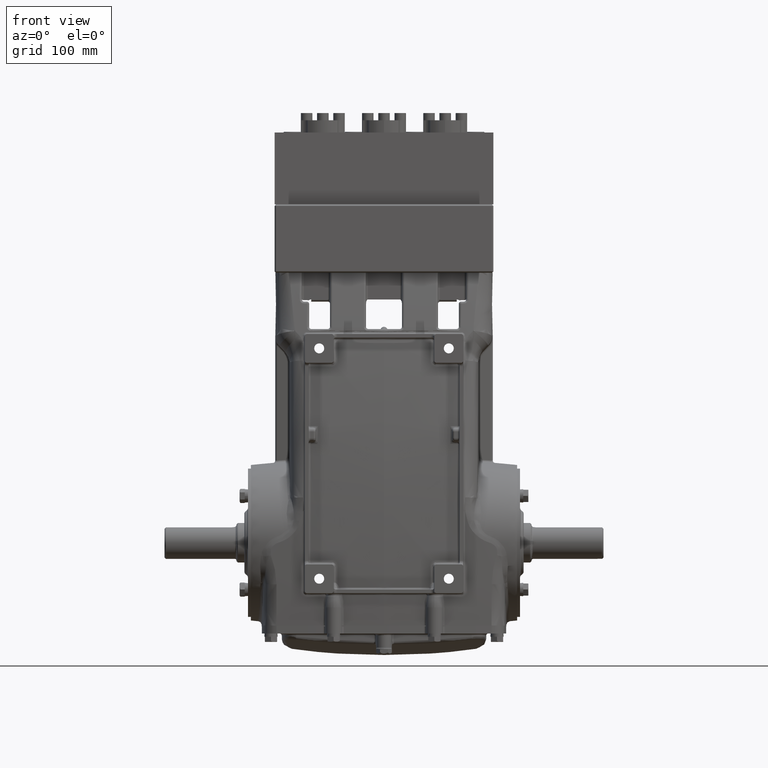
[diagram: clean part render]
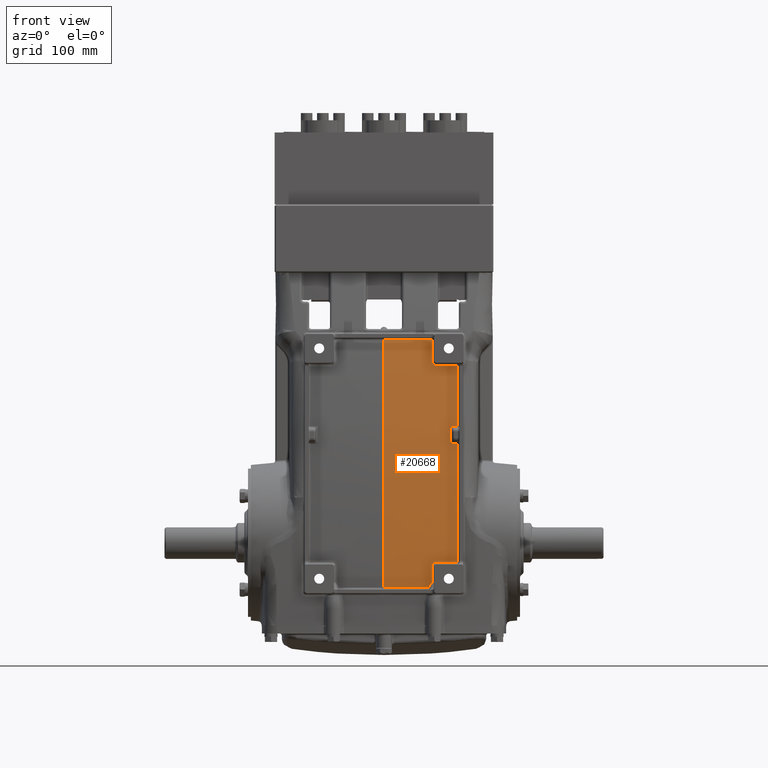
[diagram: same view with one face highlighted and labeled with its STEP entity id]
A machine part, front view. The second image highlights one B-rep face of the part: STEP entity #20668.
In plain terms, the highlighted face is a freeform B-spline surface patch.
Its self-contained STEP definition (entity closure, byte-faithful):
#419 = CARTESIAN_POINT ( 'NONE',  ( 5.413753015067796603, -4.392851647018765959, -4.721680813677779476 ) ) ;
#491 = CARTESIAN_POINT ( 'NONE',  ( 2.586632401729381137, -4.621654160764756547, -2.220136445856032648 ) ) ;
#710 = B_SPLINE_CURVE_WITH_KNOTS ( 'NONE', 3,
 ( #54352, #73187, #5166, #72777, #4768, #41236, #48588, #73586 ),
 .UNSPECIFIED., .F., .F.,
 ( 4, 2, 2, 4 ),
 ( 0.1100862934247376357, 0.1512149560370461554, 0.1923436186493546751, 0.2746009438739717146 ),
 .UNSPECIFIED. ) ;
#824 = CARTESIAN_POINT ( 'NONE',  ( 3.677771778863302199, -4.509885198506749404, -4.592266307971359041 ) ) ;
#1196 = CARTESIAN_POINT ( 'NONE',  ( 8.307133097801747765E-16, -4.665834705919339243, -2.439145830971373829 ) ) ;
#1237 = CARTESIAN_POINT ( 'NONE',  ( 8.100683595711938523, -4.413265680477349129, 1.943166230203502876 ) ) ;
#1636 = CARTESIAN_POINT ( 'NONE',  ( 8.030208900442749709, -2.576162122246953956, 14.76377952755909284 ) ) ;
#2037 = CARTESIAN_POINT ( 'NONE',  ( 6.244892509886193821, -4.326280182861818702, -4.656973560824554603 ) ) ;
#2575 = CARTESIAN_POINT ( 'NONE',  ( 3.616044454389348850, -4.301933441501103239, 5.403433961941422226 ) ) ;
#2621 = VERTEX_POINT ( 'NONE', #30761 ) ;
#2846 = CARTESIAN_POINT ( 'NONE',  ( 1.924953776098369485, -4.578667073187570047, -4.592266307971317296 ) ) ;
#2963 = ORIENTED_EDGE ( 'NONE', *, *, #27175, .F. ) ;
#3202 = VERTEX_POINT ( 'NONE', #77334 ) ;
#3250 = CARTESIAN_POINT ( 'NONE',  ( 1.271245932491347874, -4.589915476206400946, -4.656973560824534175 ) ) ;
#3650 = CARTESIAN_POINT ( 'NONE',  ( 0.2619320396434957066, -4.603595011519804103, -4.592266307971327954 ) ) ;
#3761 = CARTESIAN_POINT ( 'NONE',  ( 2.633451682630481017, -3.827767035953573593, 9.943866171489569084 ) ) ;
#4053 = CARTESIAN_POINT ( 'NONE',  ( 3.677514481449129846, -4.507195010719162731, -4.656973560824575031 ) ) ;
#4175 = CARTESIAN_POINT ( 'NONE',  ( 2.713445904319685908, -4.622922570484267801, -1.121384847322080436 ) ) ;
#4768 = CARTESIAN_POINT ( 'NONE',  ( 4.009076246432647928, -4.464142590308505021, 2.711700979093898400 ) ) ;
#4794 = CARTESIAN_POINT ( 'NONE',  ( 2.771421394848513575, -3.853013347860668514, 9.729127848689499203 ) ) ;
#4976 = CARTESIAN_POINT ( 'NONE',  ( 2.634936377767680415, -4.625970219346760004, -1.268135836703963459 ) ) ;
#5166 = CARTESIAN_POINT ( 'NONE',  ( 4.009084545783799136, -4.366297798552408516, 4.327476322675768650 ) ) ;
#5326 = VERTEX_POINT ( 'NONE', #66508 ) ;
#6223 = EDGE_CURVE ( 'NONE', #34870, #70426, #78770, .T. ) ;
#6422 = EDGE_CURVE ( 'NONE', #7752, #52148, #24028, .T. ) ;
#6429 = CARTESIAN_POINT ( 'NONE',  ( 8.307133097801747765E-16, -4.665834705919339243, -2.439145830971373829 ) ) ;
#6952 = CARTESIAN_POINT ( 'NONE',  ( 4.659148281296010552, -4.196403403979729774, 8.422581710757222950 ) ) ;
#7360 = CARTESIAN_POINT ( 'NONE',  ( 9.813594160922399112, -3.921200885824479787, -4.592266307971329731 ) ) ;
#7644 = CARTESIAN_POINT ( 'NONE',  ( 6.222606604880411818E-16, -3.704600613205711657, 11.08387675029587349 ) ) ;
#7752 = VERTEX_POINT ( 'NONE', #66856 ) ;
#7763 = CARTESIAN_POINT ( 'NONE',  ( 6.244516168916932841, -4.331721145643910198, -4.527559055118123510 ) ) ;
#8167 = CARTESIAN_POINT ( 'NONE',  ( 7.482576476895471451, -3.952699809518920748, 8.422581710757233608 ) ) ;
#8574 = CARTESIAN_POINT ( 'NONE',  ( 6.833064749036533492, -4.271718344480565754, -4.656973560824541281 ) ) ;
#8927 = EDGE_LOOP ( 'NONE', ( #38938, #55308, #15467, #11415, #53250, #24632, #58580, #2963, #80768, #32689, #67792, #46325, #77706, #24190, #57493 ) ) ;
#9379 = CARTESIAN_POINT ( 'NONE',  ( 2.784098044332857125, -4.295940717290989141, 8.422581710757331308 ) ) ;
#9961 = VERTEX_POINT ( 'NONE', #53598 ) ;
#10587 = CARTESIAN_POINT ( 'NONE',  ( 0.7397320881632531986, -4.600979020265389074, -4.592266307971323513 ) ) ;
#10929 = CARTESIAN_POINT ( 'NONE',  ( 2.633451561824138754, -3.829986750973441545, 9.928396051215916174 ) ) ;
#11091 = CARTESIAN_POINT ( 'NONE',  ( 9.804603538636959215, -4.195612680810072881, 1.943166230203482225 ) ) ;
#11415 = ORIENTED_EDGE ( 'NONE', *, *, #6422, .F. ) ;
#11808 = EDGE_CURVE ( 'NONE', #53619, #9961, #34658, .T. ) ;
#12449 = CARTESIAN_POINT ( 'NONE',  ( 0.8780478353440256400, -3.704600613205713433, 11.08387675029587172 ) ) ;
#13062 = CARTESIAN_POINT ( 'NONE',  ( 0.8165376980095109261, -4.665834705919338354, -2.439145830971372941 ) ) ;
#13100 = CARTESIAN_POINT ( 'NONE',  ( 7.550925797015794139, -4.195848803462219223, -4.721680813677748390 ) ) ;
#13505 = CARTESIAN_POINT ( 'NONE',  ( 8.780550963363717543, -4.058224466466718638, -4.592266307971327954 ) ) ;
#13901 = CARTESIAN_POINT ( 'NONE',  ( 6.832793557027403430, -4.274448491943524608, -4.592266307971325290 ) ) ;
#14285 = CARTESIAN_POINT ( 'NONE',  ( 2.869235462077895704, -4.616673264439084434, -1.063256936052564772 ) ) ;
#14302 = CARTESIAN_POINT ( 'NONE',  ( 8.781170872147274764, -4.052738791544205910, -4.721680813677760824 ) ) ;
#14696 = CARTESIAN_POINT ( 'NONE',  ( 3.678029076277474552, -4.512575386294336077, -4.527559055118143050 ) ) ;
#15103 = CARTESIAN_POINT ( 'NONE',  ( 0.8149290258095023276, -3.028218001076291355, 14.76377952755897383 ) ) ;
#15467 = ORIENTED_EDGE ( 'NONE', *, *, #48051, .F. ) ;
#15509 = CARTESIAN_POINT ( 'NONE',  ( 2.041502525274107249, -3.003381666662710892, 14.76377952755913370 ) ) ;
#15909 = CARTESIAN_POINT ( 'NONE',  ( 0.2620379937659005343, -4.606299212598425008, -4.527559055118111964 ) ) ;
#16137 = CARTESIAN_POINT ( 'NONE',  ( 4.009119313203882484, -3.951827351199129978, 8.603249513709112506 ) ) ;
#16305 = CARTESIAN_POINT ( 'NONE',  ( 1.924179365804842945, -4.573279843508714748, -4.721680813677750166 ) ) ;
#16707 = CARTESIAN_POINT ( 'NONE',  ( 1.924566570951606215, -4.575973458348141953, -4.656973560824534175 ) ) ;
#16841 = CARTESIAN_POINT ( 'NONE',  ( 2.633408173276915676, -4.626008312478406381, -1.299123915918647620 ) ) ;
#17053 = CARTESIAN_POINT ( 'NONE',  ( 2.724775699095790316, -3.850923477165796083, 9.756821694830732028 ) ) ;
#17239 = CARTESIAN_POINT ( 'NONE',  ( 2.838363699798844841, -4.617922095803651317, -1.064783195785242498 ) ) ;
#18488 = CARTESIAN_POINT ( 'NONE',  ( 2.623396351544327043, -4.620802285514722385, -2.179126252549555609 ) ) ;
#19212 = CARTESIAN_POINT ( 'NONE',  ( 3.755218300529151954, -2.933568249377660919, 14.76377952755903955 ) ) ;
#19288 = CARTESIAN_POINT ( 'NONE',  ( 2.613787791955300754, -4.621037681999546010, -2.189111230793896024 ) ) ;
#19618 = CARTESIAN_POINT ( 'NONE',  ( 8.136625690299220892, -4.133296123846644576, -4.656973560824535063 ) ) ;
#19738 = CARTESIAN_POINT ( 'NONE',  ( 2.869235462077895704, -4.616673264439084434, -1.063256936052564772 ) ) ;
#20020 = CARTESIAN_POINT ( 'NONE',  ( 9.352015265340156702, -4.258046245949182129, 1.943166230203464906 ) ) ;
#20414 = CARTESIAN_POINT ( 'NONE',  ( 5.413609788144460033, -4.400973501999735582, -4.527559055118132392 ) ) ;
#20668 = ADVANCED_FACE ( 'NONE', ( #43432 ), #80555, .T. ) ;
#20829 = CARTESIAN_POINT ( 'NONE',  ( 5.413705272760017451, -4.395558932012422204, -4.656973560824563485 ) ) ;
#21228 = CARTESIAN_POINT ( 'NONE',  ( 0.2618260855210908233, -4.600890810441183199, -4.656973560824543945 ) ) ;
#21634 = CARTESIAN_POINT ( 'NONE',  ( 6.054976045372554899E-15, -4.598186609362562294, -4.721680813677759936 ) ) ;
#22042 = CARTESIAN_POINT ( 'NONE',  ( 2.821676141139911831, -2.978136681165881150, 14.76377952755918699 ) ) ;
#22569 = CARTESIAN_POINT ( 'NONE',  ( 2.751205790464350098, -4.621420892464555230, -1.094344180641083630 ) ) ;
#22852 = CARTESIAN_POINT ( 'NONE',  ( 3.677257184034957049, -4.504504822931576058, -4.721680813677791022 ) ) ;
#23776 = CARTESIAN_POINT ( 'NONE',  ( 4.009099260313161217, -4.191345367742774108, 6.386217024925107566 ) ) ;
#23992 = CARTESIAN_POINT ( 'NONE',  ( 2.634958507792321214, -3.832110682459297202, 9.913170577341473333 ) ) ;
#24028 = B_SPLINE_CURVE_WITH_KNOTS ( 'NONE', 3,
 ( #53743, #27204, #46059, #3761 ),
 .UNSPECIFIED., .F., .F.,
 ( 4, 4 ),
 ( 0.000000000000000000, 0.02928519298519093733 ),
 .UNSPECIFIED. ) ;
#24190 = ORIENTED_EDGE ( 'NONE', *, *, #6223, .F. ) ;
#24632 = ORIENTED_EDGE ( 'NONE', *, *, #54032, .T. ) ;
#25117 = CARTESIAN_POINT ( 'NONE',  ( 1.756019466418914821, -3.688288809523445622, 11.08388144345502546 ) ) ;
#25155 = B_SPLINE_CURVE_WITH_KNOTS ( 'NONE', 3,
 ( #7644, #39194, #70750, #6429 ),
 .UNSPECIFIED., .F., .F.,
 ( 4, 4 ),
 ( 0.000000000000000000, 1.000000000000000000 ),
 .UNSPECIFIED. ) ;
#25364 = CARTESIAN_POINT ( 'NONE',  ( 4.639408238164851817, -4.450943665149169171, -4.656973560824549274 ) ) ;
#25765 = CARTESIAN_POINT ( 'NONE',  ( 8.687254691438219822, -2.497755069112371995, 14.76377952755909462 ) ) ;
#26171 = CARTESIAN_POINT ( 'NONE',  ( 8.065446248077345004, -3.888393654132777488, 8.422581710757270912 ) ) ;
#26507 = VERTEX_POINT ( 'NONE', #35123 ) ;
#26582 = CARTESIAN_POINT ( 'NONE',  ( 6.751164762279253218, -2.710159405101540742, 14.76377952755900225 ) ) ;
#26983 = CARTESIAN_POINT ( 'NONE',  ( 5.408835557366600710, -4.671702001365406254, 1.943166230203468459 ) ) ;
#26993 = CARTESIAN_POINT ( 'NONE',  ( 2.633408267973377459, -4.623967929607251115, -1.879523794570239437 ) ) ;
#27175 = EDGE_CURVE ( 'NONE', #3202, #35818, #57617, .T. ) ;
#27204 = CARTESIAN_POINT ( 'NONE',  ( 2.633457776029218156, -3.715813800803541511, 10.70430508477513953 ) ) ;
#27797 = CARTESIAN_POINT ( 'NONE',  ( 1.964061495921458844, -4.850722171969754193, 1.943166230203517308 ) ) ;
#28209 = CARTESIAN_POINT ( 'NONE',  ( 0.7392324407370322037, -4.595575017248754612, -4.721680813677755495 ) ) ;
#29130 = CARTESIAN_POINT ( 'NONE',  ( 2.793509117844862999, -4.619727269208481424, -1.075614104504940327 ) ) ;
#29222 = B_SPLINE_CURVE_WITH_KNOTS ( 'NONE', 3,
 ( #64275, #74922, #13062, #1196 ),
 .UNSPECIFIED., .F., .F.,
 ( 4, 4 ),
 ( 0.000000000000000000, 0.06222008268736683306 ),
 .UNSPECIFIED. ) ;
#29349 = CARTESIAN_POINT ( 'NONE',  ( 2.657090287576963750, -3.841747970683058622, 9.839791426524097773 ) ) ;
#29747 = CARTESIAN_POINT ( 'NONE',  ( 2.792751531202446902, -3.853427452750522342, 9.720233864941249635 ) ) ;
#30315 = CARTESIAN_POINT ( 'NONE',  ( 10.04577710926009182, -3.885247339332980054, -4.656973560824543945 ) ) ;
#30761 = CARTESIAN_POINT ( 'NONE',  ( 2.869281754821064290, -3.852085522503557069, 9.708001295117043128 ) ) ;
#30928 = B_SPLINE_CURVE_WITH_KNOTS ( 'NONE', 3,
 ( #63266, #12449, #25117, #37436 ),
 .UNSPECIFIED., .F., .F.,
 ( 4, 4 ),
 ( 0.000000000000000000, 0.06690407850567986481 ),
 .UNSPECIFIED. ) ;
#30970 = CARTESIAN_POINT ( 'NONE',  ( 4.009067684533873965, -4.561309355163068346, -1.063256557448129414 ) ) ;
#31649 = VERTEX_POINT ( 'NONE', #50460 ) ;
#31934 = CARTESIAN_POINT ( 'NONE',  ( 4.639310515179054129, -4.448246577413247138, -4.721680813677765265 ) ) ;
#32342 = CARTESIAN_POINT ( 'NONE',  ( 9.374243253404326737, -3.979213428622593973, -4.656973560824549274 ) ) ;
#32446 = CARTESIAN_POINT ( 'NONE',  ( 3.747079594199890451, -4.295241205347695157, 5.403434887655193641 ) ) ;
#32689 = ORIENTED_EDGE ( 'NONE', *, *, #11808, .F. ) ;
#32747 = CARTESIAN_POINT ( 'NONE',  ( 5.399287095810881176, -2.827095526904189082, 14.76377952755905199 ) ) ;
#33147 = CARTESIAN_POINT ( 'NONE',  ( 4.639505961150648616, -4.453640752885090315, -4.592266307971333283 ) ) ;
#33549 = CARTESIAN_POINT ( 'NONE',  ( 7.448906861072648766, -2.639979940783716561, 14.76377952755903600 ) ) ;
#33958 = CARTESIAN_POINT ( 'NONE',  ( 0.2938242304873521227, -3.031496062992124596, 14.76377952755905376 ) ) ;
#33969 = CARTESIAN_POINT ( 'NONE',  ( 2.633408173276915676, -4.626008312478406381, -1.299123915918647620 ) ) ;
#34360 = CARTESIAN_POINT ( 'NONE',  ( 0.2617201313986859956, -4.598186609362562294, -4.721680813677759048 ) ) ;
#34658 = B_SPLINE_CURVE_WITH_KNOTS ( 'NONE', 3,
 ( #51390, #41048, #17239, #72189, #59911, #29130, #72994, #54161, #22569, #41860, #4175, #66450, #67663, #35291, #48399, #72591, #35689, #47585, #61117, #4976, #79933, #16841 ),
 .UNSPECIFIED., .F., .F.,
 ( 4, 2, 2, 2, 2, 2, 2, 2, 2, 2, 4 ),
 ( 0.000000000000000000, 0.001170230795047757632, 0.001755346192571658782, 0.002340461590095559933, 0.003510692385143362234, 0.004680923180191164101, 0.005851153975238966402, 0.006436269372762868854, 0.007021384770286770438, 0.008191615565334563198, 0.009361846360382355958 ),
 .UNSPECIFIED. ) ;
#34870 = VERTEX_POINT ( 'NONE', #80999 ) ;
#35123 = CARTESIAN_POINT ( 'NONE',  ( 4.009132247748159017, -3.796718537745803257, 9.708013700501851417 ) ) ;
#35291 = CARTESIAN_POINT ( 'NONE',  ( 2.668988596127266799, -4.624672092610369489, -1.174300191169862284 ) ) ;
#35500 = CARTESIAN_POINT ( 'NONE',  ( 2.641241897834023522, -3.836150706242198005, 9.883250370688323017 ) ) ;
#35689 = CARTESIAN_POINT ( 'NONE',  ( 2.654394645030112354, -4.625238377442803639, -1.201553123469140116 ) ) ;
#35818 = VERTEX_POINT ( 'NONE', #75276 ) ;
#35902 = CARTESIAN_POINT ( 'NONE',  ( 2.750807953098200365, -3.852318133119502441, 9.739776564277198290 ) ) ;
#36249 = CARTESIAN_POINT ( 'NONE',  ( 3.616044454389348850, -4.301933441501103239, 5.403433961941422226 ) ) ;
#36851 = VERTEX_POINT ( 'NONE', #23776 ) ;
#37399 = CARTESIAN_POINT ( 'NONE',  ( 3.249324048445274560, -4.601277251705913507, -1.063256823771190129 ) ) ;
#37436 = CARTESIAN_POINT ( 'NONE',  ( 2.633461050662142977, -3.655664824017160974, 11.08388957593362711 ) ) ;
#37607 = EDGE_CURVE ( 'NONE', #26507, #36851, #57180, .T. ) ;
#37684 = CARTESIAN_POINT ( 'NONE',  ( 9.786800326190538968, -2.352938900658293697, 14.76377952755905554 ) ) ;
#38090 = CARTESIAN_POINT ( 'NONE',  ( 8.136273316822876467, -4.136040923421456128, -4.592266307971319073 ) ) ;
#38165 = CARTESIAN_POINT ( 'NONE',  ( 2.545477370009458618, -4.622452418897994519, -2.274529108363807062 ) ) ;
#38500 = CARTESIAN_POINT ( 'NONE',  ( 9.374025331952717366, -3.981947083694422851, -4.592266307971333283 ) ) ;
#38905 = CARTESIAN_POINT ( 'NONE',  ( 7.549915708541110604, -4.204068552081169585, -4.527559055118101305 ) ) ;
#38938 = ORIENTED_EDGE ( 'NONE', *, *, #37607, .F. ) ;
#39194 = CARTESIAN_POINT ( 'NONE',  ( 2.138533143211187579E-14, -4.413031083295456014, 6.613240948986014445 ) ) ;
#39304 = CARTESIAN_POINT ( 'NONE',  ( 9.813683176984632439, -3.918483937359276137, -4.656973560824545721 ) ) ;
#39700 = CARTESIAN_POINT ( 'NONE',  ( 8.718250130616125304, -3.810182812353625881, 8.422581710757270912 ) ) ;
#40337 = CARTESIAN_POINT ( 'NONE',  ( 4.009108318091917589, -4.083358441636023350, 7.495968248677195689 ) ) ;
#41048 = CARTESIAN_POINT ( 'NONE',  ( 2.853669760522056009, -4.617303774662096849, -1.063256940650804117 ) ) ;
#41078 = CARTESIAN_POINT ( 'NONE',  ( 3.629334840244932803, -3.818235481448486457, 9.708008868474776065 ) ) ;
#41236 = CARTESIAN_POINT ( 'NONE',  ( 4.009070229047597245, -4.534280010405843164, 1.094908286316123025 ) ) ;
#41733 = CARTESIAN_POINT ( 'NONE',  ( 2.708566069750672600, -4.554788720100628296, -4.592266307971327066 ) ) ;
#41860 = CARTESIAN_POINT ( 'NONE',  ( 2.725582099047808349, -4.622441117694928714, -1.111434826511108476 ) ) ;
#42068 = CARTESIAN_POINT ( 'NONE',  ( 2.744094817158744259, -3.852008386760988223, 9.743824653417735959 ) ) ;
#42236 = CARTESIAN_POINT ( 'NONE',  ( 10.04577710926006162, -3.632143973388746616, 8.422581710757240714 ) ) ;
#42292 = CARTESIAN_POINT ( 'NONE',  ( 2.869281754821064290, -3.852085522503557069, 9.708001295117043128 ) ) ;
#42474 = CARTESIAN_POINT ( 'NONE',  ( 2.869281754821064290, -3.852085522503557069, 9.708001295117043128 ) ) ;
#43199 = CARTESIAN_POINT ( 'NONE',  ( 3.878103101087254867, -4.198766236469249513, 6.386215845647989831 ) ) ;
#43432 = FACE_OUTER_BOUND ( 'NONE', #8927, .T. ) ;
#43833 = CARTESIAN_POINT ( 'NONE',  ( 10.04577710926009182, -3.890655741490221864, -4.527559055118112852 ) ) ;
#44234 = CARTESIAN_POINT ( 'NONE',  ( 6.778283963192261119, -4.023856148172574976, 8.422581710757208739 ) ) ;
#44308 = CARTESIAN_POINT ( 'NONE',  ( 2.561217022510075658, -4.622174225298794070, -2.252299614874098577 ) ) ;
#44642 = CARTESIAN_POINT ( 'NONE',  ( 6.832522365018273369, -4.277178639406483462, -4.527559055118109299 ) ) ;
#44717 = CARTESIAN_POINT ( 'NONE',  ( 2.449077410714803449, -4.623510098356429232, -2.439147228008068602 ) ) ;
#45043 = CARTESIAN_POINT ( 'NONE',  ( 7.550589100857566294, -4.198588719668536307, -4.656973560824532399 ) ) ;
#45436 = CARTESIAN_POINT ( 'NONE',  ( 4.668920579875790011, -2.879400688205008496, 14.76377952755902889 ) ) ;
#45845 = CARTESIAN_POINT ( 'NONE',  ( 4.639603684136446304, -4.456337840621012347, -4.527559055118117293 ) ) ;
#46059 = CARTESIAN_POINT ( 'NONE',  ( 2.633454653369547316, -3.773182203592455153, 10.32429064678720287 ) ) ;
#46167 = EDGE_CURVE ( 'NONE', #31649, #7752, #30928, .T. ) ;
#46248 = CARTESIAN_POINT ( 'NONE',  ( 1.338022688523618386, -4.335583564402649692, 8.422581710757242490 ) ) ;
#46325 = ORIENTED_EDGE ( 'NONE', *, *, #62394, .F. ) ;
#46652 = CARTESIAN_POINT ( 'NONE',  ( 0.7399819118763637515, -4.603681021773706306, -4.527559055118107523 ) ) ;
#46769 = CARTESIAN_POINT ( 'NONE',  ( 2.633451682630481017, -3.827767035953573593, 9.943866171489569084 ) ) ;
#47060 = CARTESIAN_POINT ( 'NONE',  ( 2.708190288782601929, -4.552099645568209674, -4.656973560824543057 ) ) ;
#47333 = B_SPLINE_CURVE_WITH_KNOTS ( 'NONE', 3,
 ( #73607, #10929, #23992, #48203, #35500, #49010, #60522, #29349, #54374, #74006, #79336, #73212, #17053, #42068, #35902, #60925, #4794, #29747, #54775, #79739, #48609, #42474 ),
 .UNSPECIFIED., .F., .F.,
 ( 4, 2, 2, 2, 2, 2, 2, 2, 2, 2, 4 ),
 ( 0.000000000000000000, 0.001174131697665091630, 0.001761197546497641564, 0.002348263395330191499, 0.003522395092995463540, 0.004696526790660735147, 0.005870658488326007188, 0.006457724337158620223, 0.007044790185991232391, 0.008218921883656457594, 0.009393053581321683665 ),
 .UNSPECIFIED. ) ;
#47457 = CARTESIAN_POINT ( 'NONE',  ( -1.301789904605454270E-14, -3.031496062992124596, 14.76377952755905376 ) ) ;
#47585 = CARTESIAN_POINT ( 'NONE',  ( 2.645560017094310101, -4.625577472127104350, -1.222825218996533625 ) ) ;
#47858 = CARTESIAN_POINT ( 'NONE',  ( 2.708941850718743272, -4.557477794633046031, -4.527559055118110187 ) ) ;
#48051 = EDGE_CURVE ( 'NONE', #52148, #2621, #47333, .T. ) ;
#48150 = CARTESIAN_POINT ( 'NONE',  ( 3.616046548859178866, -4.274180461905598527, 5.731210759690506862 ) ) ;
#48203 = CARTESIAN_POINT ( 'NONE',  ( 2.639396831441881641, -3.835158132531951924, 9.890685908161072959 ) ) ;
#48399 = CARTESIAN_POINT ( 'NONE',  ( 2.664969661778525900, -4.624828674874356338, -1.180995928298864461 ) ) ;
#48504 = CARTESIAN_POINT ( 'NONE',  ( 4.009132247748159017, -3.796718537745803257, 9.708013700501851417 ) ) ;
#48588 = CARTESIAN_POINT ( 'NONE',  ( 4.009068041970367702, -4.558888634782253035, 0.01623320812878846497 ) ) ;
#48609 = CARTESIAN_POINT ( 'NONE',  ( 2.853661428704624470, -3.852718271660905192, 9.708001154008286449 ) ) ;
#48934 = CARTESIAN_POINT ( 'NONE',  ( 3.616051193212727721, -4.212515188752981921, 6.386213672272969433 ) ) ;
#48994 = VERTEX_POINT ( 'NONE', #30970 ) ;
#49010 = CARTESIAN_POINT ( 'NONE',  ( 2.645681255259437759, -3.838088212996774384, 9.868500916384387978 ) ) ;
#49329 = EDGE_CURVE ( 'NONE', #36851, #34870, #65778, .T. ) ;
#49579 = CARTESIAN_POINT ( 'NONE',  ( 10.04577710926009182, -3.882543138254359150, -4.721680813677759936 ) ) ;
#49736 = CARTESIAN_POINT ( 'NONE',  ( 4.009099260313161217, -4.191345367742774108, 6.386217024925107566 ) ) ;
#50079 = CARTESIAN_POINT ( 'NONE',  ( 4.009091750255389108, -4.280763994658505212, 5.403436896546486956 ) ) ;
#50382 = CARTESIAN_POINT ( 'NONE',  ( 6.206882071990785121, -4.076465440027476461, 8.422581710757208739 ) ) ;
#50460 = CARTESIAN_POINT ( 'NONE',  ( 6.222606604880411818E-16, -3.704600613205711657, 11.08387675029587349 ) ) ;
#50788 = CARTESIAN_POINT ( 'NONE',  ( 9.374461174855936108, -3.976479773550764651, -4.721680813677765265 ) ) ;
#51202 = CARTESIAN_POINT ( 'NONE',  ( 8.135920943346530265, -4.138785722996266792, -4.527559055118102194 ) ) ;
#51390 = CARTESIAN_POINT ( 'NONE',  ( 2.869235462077895704, -4.616673264439084434, -1.063256936052564772 ) ) ;
#51609 = CARTESIAN_POINT ( 'NONE',  ( 9.373807410501107995, -3.984680738766252173, -4.527559055118117293 ) ) ;
#52015 = CARTESIAN_POINT ( 'NONE',  ( 6.188065023527709485, -2.761802089765181822, 14.76377952755900935 ) ) ;
#52148 = VERTEX_POINT ( 'NONE', #46769 ) ;
#52421 = CARTESIAN_POINT ( 'NONE',  ( 0.7649642831874112758, -4.873881172605420531, 1.943166230203459577 ) ) ;
#52819 = CARTESIAN_POINT ( 'NONE',  ( 0.7899466544984574679, -4.344729339611482999, 8.422581710757190976 ) ) ;
#53225 = CARTESIAN_POINT ( 'NONE',  ( -5.544917873066535615E-15, -4.347787444496944431, 8.422581710757240714 ) ) ;
#53250 = ORIENTED_EDGE ( 'NONE', *, *, #46167, .F. ) ;
#53598 = CARTESIAN_POINT ( 'NONE',  ( 2.633408173276915676, -4.626008312478406381, -1.299123915918647620 ) ) ;
#53619 = VERTEX_POINT ( 'NONE', #14285 ) ;
#53630 = CARTESIAN_POINT ( 'NONE',  ( 6.003581252353306379E-15, -4.600890810441183199, -4.656973560824543945 ) ) ;
#53743 = CARTESIAN_POINT ( 'NONE',  ( 2.633461050662142977, -3.655664824017160974, 11.08388957593362711 ) ) ;
#53801 = VERTEX_POINT ( 'NONE', #65100 ) ;
#54032 = EDGE_CURVE ( 'NONE', #31649, #53801, #25155, .T. ) ;
#54161 = CARTESIAN_POINT ( 'NONE',  ( 2.764743968394219653, -4.620880156396577121, -1.087110397389638772 ) ) ;
#54352 = CARTESIAN_POINT ( 'NONE',  ( 4.009091750255389108, -4.280763994658505212, 5.403436896546486956 ) ) ;
#54374 = CARTESIAN_POINT ( 'NONE',  ( 2.664278630473030596, -3.843399480132904777, 9.826262832668120950 ) ) ;
#54775 = CARTESIAN_POINT ( 'NONE',  ( 2.807609554183104539, -3.853480852725197803, 9.715674560606947452 ) ) ;
#54942 = CARTESIAN_POINT ( 'NONE',  ( 10.04577710926007583, -4.161075849352311451, 1.943166230203482225 ) ) ;
#55308 = ORIENTED_EDGE ( 'NONE', *, *, #74158, .F. ) ;
#56210 = CARTESIAN_POINT ( 'NONE',  ( 2.633408445068508463, -4.620541372319329376, -2.169705992555975183 ) ) ;
#56662 = CARTESIAN_POINT ( 'NONE',  ( 3.629276353741744732, -4.582824952503464999, -1.063256691878862847 ) ) ;
#56946 = CARTESIAN_POINT ( 'NONE',  ( 7.550252404699338449, -4.201328635874852502, -4.592266307971317296 ) ) ;
#57045 = CARTESIAN_POINT ( 'NONE',  ( 3.878095849180120069, -4.288184763484342632, 5.403435864250364595 ) ) ;
#57180 = B_SPLINE_CURVE_WITH_KNOTS ( 'NONE', 3,
 ( #48504, #16137, #40337, #78434 ),
 .UNSPECIFIED., .F., .F.,
 ( 4, 4 ),
 ( 0.000000000000000000, 0.08500869428581235565 ),
 .UNSPECIFIED. ) ;
#57328 = B_SPLINE_CURVE_WITH_KNOTS ( 'NONE', 3,
 ( #42292, #67288, #41078, #66082 ),
 .UNSPECIFIED., .F., .F.,
 ( 4, 4 ),
 ( 0.000000000000000000, 0.02898692912293929919 ),
 .UNSPECIFIED. ) ;
#57355 = CARTESIAN_POINT ( 'NONE',  ( 6.805403164105268132, -4.550193385702355542, 1.943166230203468459 ) ) ;
#57493 = ORIENTED_EDGE ( 'NONE', *, *, #49329, .F. ) ;
#57617 = B_SPLINE_CURVE_WITH_KNOTS ( 'NONE', 3,
 ( #56210, #18488, #19288, #75841, #491, #44308, #38165, #69725, #63178, #44717 ),
 .UNSPECIFIED., .F., .F.,
 ( 4, 2, 2, 2, 4 ),
 ( 0.04411098432046615253, 0.04513956298825744923, 0.04616814165604874592, 0.04822529899163137401, 0.05233961366279665794 ),
 .UNSPECIFIED. ) ;
#57756 = CARTESIAN_POINT ( 'NONE',  ( 8.780241008971938044, -4.060967303927975003, -4.527559055118111964 ) ) ;
#58161 = CARTESIAN_POINT ( 'NONE',  ( 5.404061326588741387, -4.143078516905423392, 8.422581710757231832 ) ) ;
#58565 = CARTESIAN_POINT ( 'NONE',  ( 1.271907088491667448, -4.595311714543250936, -4.527559055118103082 ) ) ;
#58580 = ORIENTED_EDGE ( 'NONE', *, *, #67539, .F. ) ;
#59385 = CARTESIAN_POINT ( 'NONE',  ( 1.270915354491187976, -4.587217357037975951, -4.721680813677750166 ) ) ;
#59782 = CARTESIAN_POINT ( 'NONE',  ( 1.271576510491507550, -4.592613595374825941, -4.592266307971319073 ) ) ;
#59911 = CARTESIAN_POINT ( 'NONE',  ( 2.808312386648814218, -4.619132474409107125, -1.071132298595862675 ) ) ;
#60186 = CARTESIAN_POINT ( 'NONE',  ( 1.925340981245132754, -4.581360688026997252, -4.527559055118101305 ) ) ;
#60522 = CARTESIAN_POINT ( 'NONE',  ( 2.648289797643023302, -3.839036234659721103, 9.861161471962155645 ) ) ;
#60925 = CARTESIAN_POINT ( 'NONE',  ( 2.764453734349016312, -3.852819460961609543, 9.732441120458709349 ) ) ;
#61092 = CARTESIAN_POINT ( 'NONE',  ( 9.813505144860167562, -3.923917834289683881, -4.527559055118114628 ) ) ;
#61117 = CARTESIAN_POINT ( 'NONE',  ( 2.641027938767021688, -4.625748410727640980, -1.237653653290637035 ) ) ;
#62005 = EDGE_CURVE ( 'NONE', #9961, #3202, #77017, .T. ) ;
#62056 = CARTESIAN_POINT ( 'NONE',  ( 3.747086590047644439, -4.205822820303535714, 6.386214730073086265 ) ) ;
#62394 = EDGE_CURVE ( 'NONE', #5326, #48994, #710, .T. ) ;
#62731 = B_SPLINE_CURVE_WITH_KNOTS ( 'NONE', 3,
 ( #63206, #32446, #57045, #50079 ),
 .UNSPECIFIED., .F., .F.,
 ( 4, 4 ),
 ( 6.938893903907228378E-17, 0.009997877322231155453 ),
 .UNSPECIFIED. ) ;
#63101 = CARTESIAN_POINT ( 'NONE',  ( 5.413657530452238298, -4.398266217006079337, -4.592266307971348382 ) ) ;
#63178 = CARTESIAN_POINT ( 'NONE',  ( 2.473840061928060496, -4.623398243447898182, -2.390294904614319815 ) ) ;
#63206 = CARTESIAN_POINT ( 'NONE',  ( 3.616044454389348850, -4.301933441501103239, 5.403433961941422226 ) ) ;
#63266 = CARTESIAN_POINT ( 'NONE',  ( 6.222606604880411818E-16, -3.704600613205711657, 11.08387675029587349 ) ) ;
#63509 = CARTESIAN_POINT ( 'NONE',  ( 6.225699120453859869, -4.603769284748519652, 1.943166230203460909 ) ) ;
#63916 = CARTESIAN_POINT ( 'NONE',  ( 6.833335941045664441, -4.268988197017606900, -4.721680813677756383 ) ) ;
#64275 = CARTESIAN_POINT ( 'NONE',  ( 2.449077410714803449, -4.623510098356429232, -2.439147228008068602 ) ) ;
#64311 = CARTESIAN_POINT ( 'NONE',  ( 8.749245569794030786, -4.335251050053626543, 1.943166230203497991 ) ) ;
#64720 = CARTESIAN_POINT ( 'NONE',  ( 9.308430975018255893, -2.418713787122484415, 14.76377952755900935 ) ) ;
#65100 = CARTESIAN_POINT ( 'NONE',  ( 8.307133097801747765E-16, -4.665834705919339243, -2.439145830971373829 ) ) ;
#65118 = CARTESIAN_POINT ( 'NONE',  ( 2.746519947525800642, -4.826385247874843465, 1.943166230203528411 ) ) ;
#65518 = CARTESIAN_POINT ( 'NONE',  ( 2.002782010597783824, -4.320731672086859376, 8.422581710757299334 ) ) ;
#65778 = B_SPLINE_CURVE_WITH_KNOTS ( 'NONE', 3,
 ( #49736, #43199, #62056, #48934 ),
 .UNSPECIFIED., .F., .F.,
 ( 4, 4 ),
 ( 1.947840340079970283E-16, 0.009997897390823021896 ),
 .UNSPECIFIED. ) ;
#65926 = CARTESIAN_POINT ( 'NONE',  ( 5.952186459334057860E-15, -4.603595011519804103, -4.592266307971328843 ) ) ;
#66082 = CARTESIAN_POINT ( 'NONE',  ( 4.009132247748159017, -3.796718537745803257, 9.708013700501851417 ) ) ;
#66324 = CARTESIAN_POINT ( 'NONE',  ( 0.7394822644501427567, -4.598277018757071843, -4.656973560824539504 ) ) ;
#66450 = CARTESIAN_POINT ( 'NONE',  ( 2.691688546195931675, -4.623782299950007335, -1.143123225144427435 ) ) ;
#66508 = CARTESIAN_POINT ( 'NONE',  ( 4.009091750255389108, -4.280763994658505212, 5.403436896546486956 ) ) ;
#66856 = CARTESIAN_POINT ( 'NONE',  ( 2.633461050662142977, -3.655664824017160974, 11.08388957593362711 ) ) ;
#67236 = CARTESIAN_POINT ( 'NONE',  ( 10.04577710926009182, -3.887951540411600959, -4.592266307971328843 ) ) ;
#67288 = CARTESIAN_POINT ( 'NONE',  ( 3.249376453830433942, -3.836688622418527483, 9.708004728764223046 ) ) ;
#67539 = EDGE_CURVE ( 'NONE', #35818, #53801, #29222, .T. ) ;
#67544 = B_SPLINE_CURVE_WITH_KNOTS ( 'NONE', 3,
 ( #68961, #56662, #37399, #19738 ),
 .UNSPECIFIED., .F., .F.,
 ( 4, 4 ),
 ( 1.387778780781445676E-17, 0.02898646123601396341 ),
 .UNSPECIFIED. ) ;
#67663 = CARTESIAN_POINT ( 'NONE',  ( 2.681924243328158042, -4.624166295150564210, -1.154984678794387598 ) ) ;
#67792 = ORIENTED_EDGE ( 'NONE', *, *, #79649, .F. ) ;
#68227 = CARTESIAN_POINT ( 'NONE',  ( 3.616051193212727721, -4.212515188752981921, 6.386213672272969433 ) ) ;
#68844 = CARTESIAN_POINT ( 'NONE',  ( 9.795701932413749091, -3.667955543504810123, 8.422581710757242490 ) ) ;
#68961 = CARTESIAN_POINT ( 'NONE',  ( 4.009067684533873965, -4.561309355163068346, -1.063256557448129414 ) ) ;
#69242 = CARTESIAN_POINT ( 'NONE',  ( 8.780860917755495265, -4.055481629005462274, -4.656973560824543945 ) ) ;
#69650 = CARTESIAN_POINT ( 'NONE',  ( 6.245080680370824311, -4.323559701470772509, -4.721680813677770594 ) ) ;
#69725 = CARTESIAN_POINT ( 'NONE',  ( 2.500623379743942998, -4.623138100157921926, -2.342764431144773951 ) ) ;
#70056 = CARTESIAN_POINT ( 'NONE',  ( 9.330223120179205409, -3.732059769306459884, 8.422581710757210516 ) ) ;
#70426 = VERTEX_POINT ( 'NONE', #2575 ) ;
#70460 = CARTESIAN_POINT ( 'NONE',  ( 4.649375982716229316, -4.726046614213196939, 1.943166230203471567 ) ) ;
#70750 = CARTESIAN_POINT ( 'NONE',  ( 2.505936219533671878E-14, -4.734812052058077647, 2.088789099802080607 ) ) ;
#70860 = CARTESIAN_POINT ( 'NONE',  ( 3.703758817694700944, -4.781594165052963419, 1.943166230203458023 ) ) ;
#70870 = CARTESIAN_POINT ( 'NONE',  ( 2.633408445068508463, -4.620541372319329376, -2.169705992555975183 ) ) ;
#71080 = EDGE_CURVE ( 'NONE', #70426, #5326, #62731, .T. ) ;
#71267 = CARTESIAN_POINT ( 'NONE',  ( 0.2726334060063855813, -4.876719320460511042, 1.943166230203482892 ) ) ;
#71665 = CARTESIAN_POINT ( 'NONE',  ( 1.371080488539591968, -3.018683991878269079, 14.76377952755904843 ) ) ;
#72061 = CARTESIAN_POINT ( 'NONE',  ( 0.2832288182468694071, -4.347787444496944431, 8.422581710757240714 ) ) ;
#72189 = CARTESIAN_POINT ( 'NONE',  ( 2.815778172814598523, -4.618832082285478258, -1.069268495893053617 ) ) ;
#72461 = CARTESIAN_POINT ( 'NONE',  ( 1.304964888507643472, -4.865123631385777081, 1.943166230203488221 ) ) ;
#72591 = CARTESIAN_POINT ( 'NONE',  ( 2.657685429304644131, -4.625111318126711168, -1.194604513787229871 ) ) ;
#72777 = CARTESIAN_POINT ( 'NONE',  ( 4.009078708508510225, -4.435224281480957487, 3.250428491501163197 ) ) ;
#72994 = CARTESIAN_POINT ( 'NONE',  ( 2.786150692338191348, -4.620022506536527906, -1.078245028240014669 ) ) ;
#73187 = CARTESIAN_POINT ( 'NONE',  ( 4.009087921353016171, -4.326285157352316446, 4.865810634977489002 ) ) ;
#73212 = CARTESIAN_POINT ( 'NONE',  ( 2.712919804652293099, -3.849994944742353820, 9.766627177032775720 ) ) ;
#73586 = CARTESIAN_POINT ( 'NONE',  ( 4.009067684533873965, -4.561309355163068346, -1.063256557448129414 ) ) ;
#73607 = CARTESIAN_POINT ( 'NONE',  ( 2.633451682630481017, -3.827767035953573593, 9.943866171489569084 ) ) ;
#74006 = CARTESIAN_POINT ( 'NONE',  ( 2.681283402009699390, -3.846391426601914798, 9.800633888478397893 ) ) ;
#74158 = EDGE_CURVE ( 'NONE', #2621, #26507, #57328, .T. ) ;
#74922 = CARTESIAN_POINT ( 'NONE',  ( 1.633027103211280417, -4.651716990583321554, -2.439146517294747962 ) ) ;
#75276 = CARTESIAN_POINT ( 'NONE',  ( 2.449077410714803449, -4.623510098356429232, -2.439147228008068602 ) ) ;
#75367 = CARTESIAN_POINT ( 'NONE',  ( 8.136978063775567094, -4.130551324271833913, -4.721680813677751054 ) ) ;
#75766 = CARTESIAN_POINT ( 'NONE',  ( 9.813772193046863990, -3.915766988894072043, -4.721680813677761712 ) ) ;
#75841 = CARTESIAN_POINT ( 'NONE',  ( 2.595409234286698119, -4.621463490786902106, -2.209614886988585436 ) ) ;
#76173 = CARTESIAN_POINT ( 'NONE',  ( 7.516246092718290583, -4.478060172712870823, 1.943166230203484224 ) ) ;
#76577 = CARTESIAN_POINT ( 'NONE',  ( 6.244704339401563331, -4.329000664252864006, -4.592266307971338613 ) ) ;
#76977 = CARTESIAN_POINT ( 'NONE',  ( 3.729488559111926893, -4.251260959985939003, 8.422581710757222950 ) ) ;
#77017 = B_SPLINE_CURVE_WITH_KNOTS ( 'NONE', 3,
 ( #33969, #78615, #26993, #70870 ),
 .UNSPECIFIED., .F., .F.,
 ( 4, 4 ),
 ( 0.000000000000000000, 0.02211340015105577039 ),
 .UNSPECIFIED. ) ;
#77334 = CARTESIAN_POINT ( 'NONE',  ( 2.633408445068508463, -4.620541372319329376, -2.169705992555975183 ) ) ;
#77706 = ORIENTED_EDGE ( 'NONE', *, *, #71080, .F. ) ;
#77788 = CARTESIAN_POINT ( 'NONE',  ( 7.613123643899153952E-16, -4.876719320460511042, 1.943166230203482225 ) ) ;
#78196 = CARTESIAN_POINT ( 'NONE',  ( 2.707814507814531257, -4.549410571035791051, -4.721680813677759048 ) ) ;
#78434 = CARTESIAN_POINT ( 'NONE',  ( 4.009099260313161217, -4.191345367742774108, 6.386217024925107566 ) ) ;
#78604 = CARTESIAN_POINT ( 'NONE',  ( 5.900791666314808552E-15, -4.606299212598425008, -4.527559055118112852 ) ) ;
#78615 = CARTESIAN_POINT ( 'NONE',  ( 2.633408177355273327, -4.625790264749591429, -1.589326262183604399 ) ) ;
#78770 = B_SPLINE_CURVE_WITH_KNOTS ( 'NONE', 3,
 ( #68227, #79287, #48150, #36249 ),
 .UNSPECIFIED., .F., .F.,
 ( 4, 4 ),
 ( 0.000000000000000000, 0.02506584408557438123 ),
 .UNSPECIFIED. ) ;
#79287 = CARTESIAN_POINT ( 'NONE',  ( 3.616048795176231678, -4.244373793230554526, 6.058810424978555709 ) ) ;
#79336 = CARTESIAN_POINT ( 'NONE',  ( 2.691205871054139109, -3.847737429745157645, 9.788464922674490865 ) ) ;
#79649 = EDGE_CURVE ( 'NONE', #48994, #53619, #67544, .T. ) ;
#79739 = CARTESIAN_POINT ( 'NONE',  ( 2.838203157779700447, -3.853123549072879683, 9.709538004407617606 ) ) ;
#79933 = CARTESIAN_POINT ( 'NONE',  ( 2.633408173057984136, -4.626020017796206751, -1.283545167597651249 ) ) ;
#80302 = CARTESIAN_POINT ( 'NONE',  ( 10.04577710926004208, -2.315852591883929890, 14.76377952755905376 ) ) ;
#80555 = B_SPLINE_SURFACE_WITH_KNOTS ( 'NONE', 3, 3, ( 
 ( #80302, #42236, #54942, #43833, #67236, #30315, #49579 ),
 ( #37684, #68844, #11091, #61092, #7360, #39304, #75766 ),
 ( #64720, #70056, #20020, #51609, #38500, #32342, #50788 ),
 ( #25765, #39700, #64311, #57756, #13505, #69242, #14302 ),
 ( #1636, #26171, #1237, #51202, #38090, #19618, #75367 ),
 ( #33549, #8167, #76173, #38905, #56946, #45043, #13100 ),
 ( #26582, #44234, #57355, #44642, #13901, #8574, #63916 ),
 ( #52015, #50382, #63509, #7763, #76577, #2037, #69650 ),
 ( #32747, #58161, #26983, #20414, #63101, #20829, #419 ),
 ( #45436, #6952, #70460, #45845, #33147, #25364, #31934 ),
 ( #19212, #76977, #70860, #14696, #824, #4053, #22852 ),
 ( #22042, #9379, #65118, #47858, #41733, #47060, #78196 ),
 ( #15509, #65518, #27797, #60186, #2846, #16707, #16305 ),
 ( #71665, #46248, #72461, #58565, #59782, #3250, #59385 ),
 ( #15103, #52819, #52421, #46652, #10587, #66324, #28209 ),
 ( #33958, #72061, #71267, #15909, #3650, #21228, #34360 ),
 ( #47457, #53225, #77788, #78604, #65926, #53630, #21634 ) ),
 .UNSPECIFIED., .F., .F., .F.,
 ( 4, 1, 1, 1, 1, 1, 1, 1, 1, 1, 1, 1, 1, 1, 4 ),
 ( 4, 3, 4 ),
 ( 0.6416899016319266291, 0.6680709144412995126, 0.6910511929030633826, 0.7070270417424607823, 0.7380269954074184513, 0.7537315596691966935, 0.7829012457735833319, 0.7996549019161131033, 0.8403417066807266078, 0.8632468234832121334, 0.8997714546634835164, 0.9419247260028263957, 0.9467756368356592400, 0.9704551915184829181, 1.000000000000000000 ),
 ( 0.000000000000000000, 1.000000000000000000, 1.010000000000000009 ),
 .UNSPECIFIED. ) ;
#80768 = ORIENTED_EDGE ( 'NONE', *, *, #62005, .F. ) ;
#80999 = CARTESIAN_POINT ( 'NONE',  ( 3.616051193212727721, -4.212515188752981921, 6.386213672272969433 ) ) ;